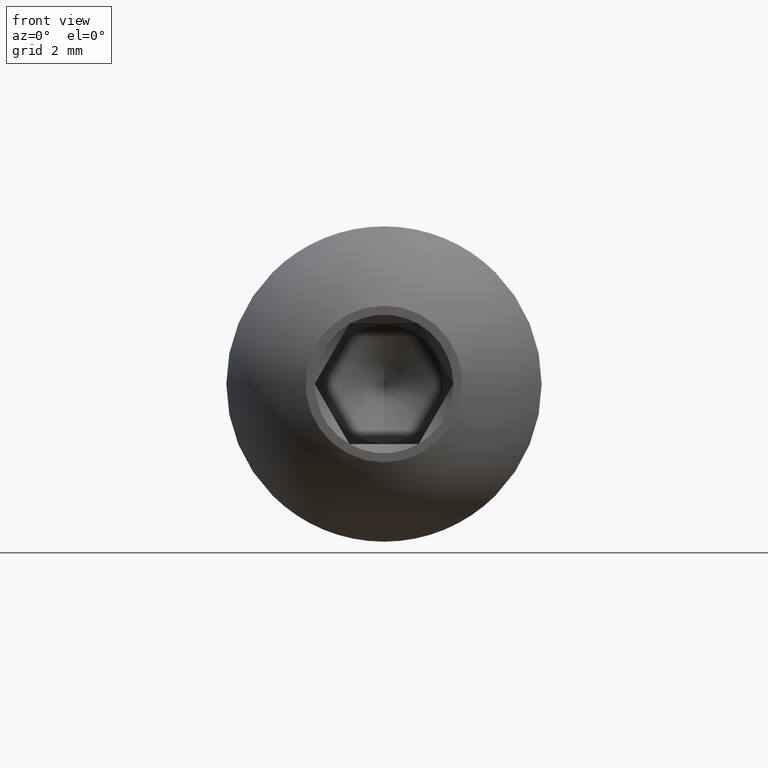
[diagram: clean part render]
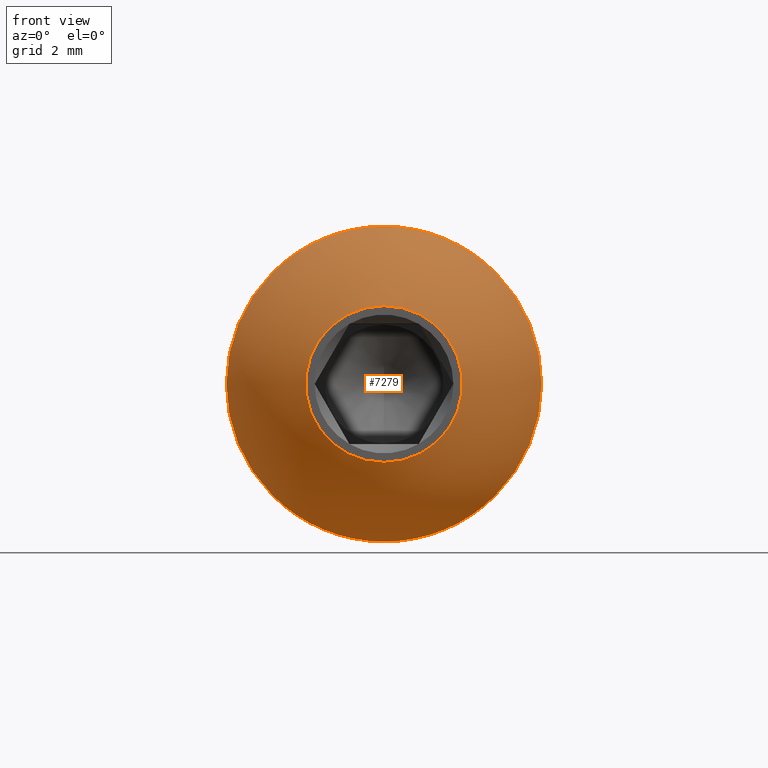
[diagram: same view with one face highlighted and labeled with its STEP entity id]
A machine part, front view. The second image highlights one B-rep face of the part: STEP entity #7279.
In plain terms, the highlighted spherical surface has radius 5.6036 mm.
Its self-contained STEP definition (entity closure, byte-faithful):
#145 = EDGE_LOOP ( 'NONE', ( #5954 ) ) ;
#1561 = DIRECTION ( 'NONE',  ( -0.0000000000000000000, -1.000000000000000000, -0.0000000000000000000 ) ) ;
#2152 = CARTESIAN_POINT ( 'NONE',  ( 0.0000000000000000000, 4.958921003435260200, 0.0000000000000000000 ) ) ;
#2603 = VERTEX_POINT ( 'NONE', #10911 ) ;
#2789 = AXIS2_PLACEMENT_3D ( 'NONE', #2152, #15372, #4543 ) ;
#4543 = DIRECTION ( 'NONE',  ( 1.000000000000000000, 0.0000000000000000000, 0.0000000000000000000 ) ) ;
#4698 = DIRECTION ( 'NONE',  ( -0.0000000000000000000, -1.000000000000000000, -0.0000000000000000000 ) ) ;
#4824 = ORIENTED_EDGE ( 'NONE', *, *, #12361, .T. ) ;
#5414 = EDGE_CURVE ( 'NONE', #5772, #5772, #12033, .T. ) ;
#5482 = SPHERICAL_SURFACE ( 'NONE', #2789, 5.603558824327607500 ) ;
#5772 = VERTEX_POINT ( 'NONE', #7355 ) ;
#5893 = DIRECTION ( 'NONE',  ( 0.0000000000000000000, 0.0000000000000000000, -1.000000000000000000 ) ) ;
#5954 = ORIENTED_EDGE ( 'NONE', *, *, #5414, .F. ) ;
#6384 = CIRCLE ( 'NONE', #9097, 5.249999999999999100 ) ;
#7079 = AXIS2_PLACEMENT_3D ( 'NONE', #14846, #1561, #8708 ) ;
#7279 = ADVANCED_FACE ( 'NONE', ( #11802, #14071 ), #5482, .T. ) ;
#7355 = CARTESIAN_POINT ( 'NONE',  ( 0.0000000000000000000, -8.673617379884035500E-016, -2.609401076758501000 ) ) ;
#8708 = DIRECTION ( 'NONE',  ( 0.0000000000000000000, 0.0000000000000000000, -1.000000000000000000 ) ) ;
#9097 = AXIS2_PLACEMENT_3D ( 'NONE', #11869, #4698, #5893 ) ;
#10911 = CARTESIAN_POINT ( 'NONE',  ( 0.0000000000000000000, 3.000000000000000000, -5.249999999999999100 ) ) ;
#11802 = FACE_OUTER_BOUND ( 'NONE', #12706, .T. ) ;
#11869 = CARTESIAN_POINT ( 'NONE',  ( 0.0000000000000000000, 3.000000000000000000, 0.0000000000000000000 ) ) ;
#12033 = CIRCLE ( 'NONE', #7079, 2.609401076758501000 ) ;
#12361 = EDGE_CURVE ( 'NONE', #2603, #2603, #6384, .T. ) ;
#12706 = EDGE_LOOP ( 'NONE', ( #4824 ) ) ;
#14071 = FACE_OUTER_BOUND ( 'NONE', #145, .T. ) ;
#14846 = CARTESIAN_POINT ( 'NONE',  ( 0.0000000000000000000, -8.673617379884035500E-016, 0.0000000000000000000 ) ) ;
#15372 = DIRECTION ( 'NONE',  ( 0.0000000000000000000, 0.0000000000000000000, 1.000000000000000000 ) ) ;